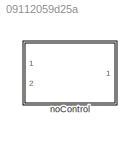
MODEL slx_09112059d25a
KIND library
CONFIG AbsTol = auto
CONFIG EnableMultiTasking = off
CONFIG FixedStep = auto
CONFIG MaxStep = auto
CONFIG MinStep = auto
CONFIG RelTol = 1e-3
CONFIG SampleTimeConstraint = Unconstrained
CONFIG Solver = VariableStepAuto
CONFIG SolverName = VariableStepAuto
CONFIG StartTime = 0.0
CONFIG StopTime = 10.0
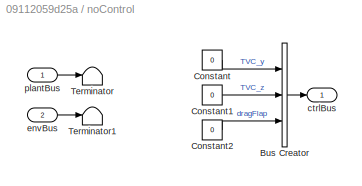
BLOCK [SubSystem] noControl
  Ports = [2, 1]
  RequestExecContextInheritance = off
BLOCK [BusCreator] noControl/Bus Creator
  DisplayOption = bar
  InheritFromInputs = on
  Inputs = 3
  Ports = [3, 1]
BLOCK [Constant] noControl/Constant
  Value = 0
BLOCK [Constant] noControl/Constant1
  Value = 0
BLOCK [Constant] noControl/Constant2
  Value = 0
BLOCK [Terminator] noControl/Terminator
BLOCK [Terminator] noControl/Terminator1
BLOCK [Outport] noControl/ctrlBus
  VectorParamsAs1DForOutWhenUnconnected = off
BLOCK [Inport] noControl/envBus
  Port = 2
BLOCK [Inport] noControl/plantBus
LINE noControl/Bus Creator:1 -> noControl/ctrlBus:1
LINE noControl/Constant1:1 -> noControl/Bus Creator:2
LINE noControl/Constant2:1 -> noControl/Bus Creator:3
LINE noControl/Constant:1 -> noControl/Bus Creator:1
LINE noControl/envBus:1 -> noControl/Terminator1:1
LINE noControl/plantBus:1 -> noControl/Terminator:1
